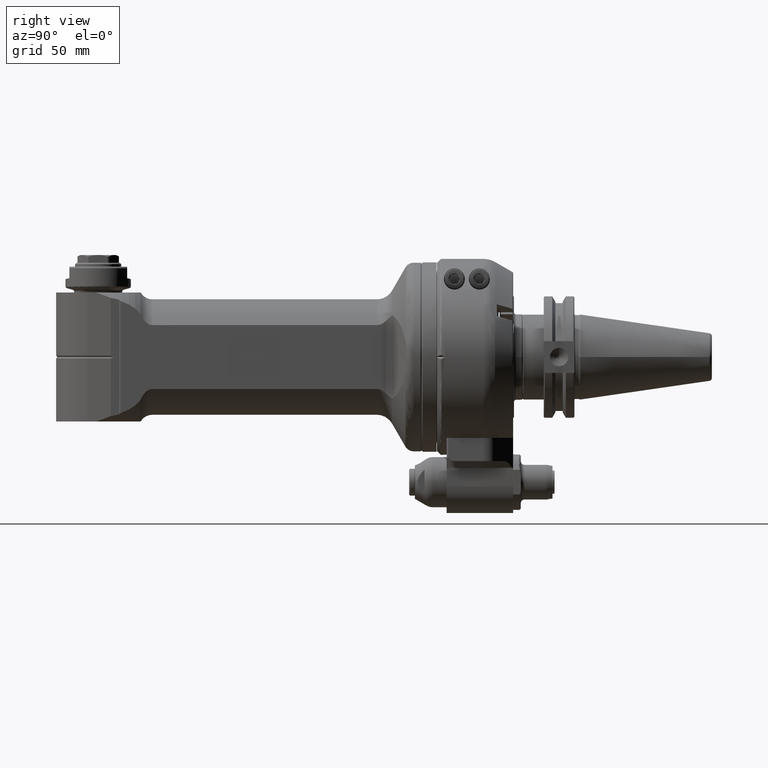
[diagram: clean part render]
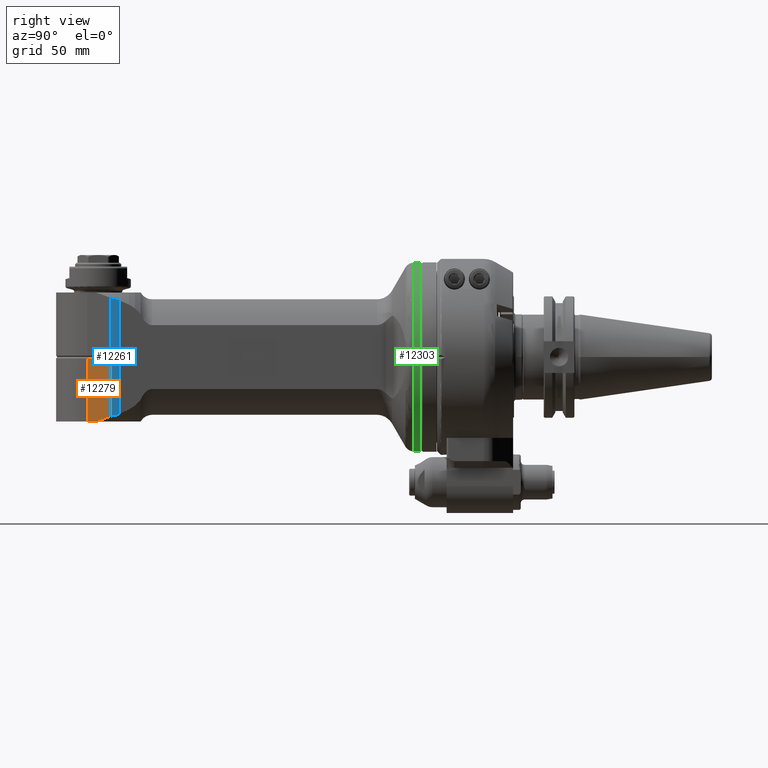
[diagram: same view with three faces highlighted in distinct colors, each labeled with its STEP entity id]
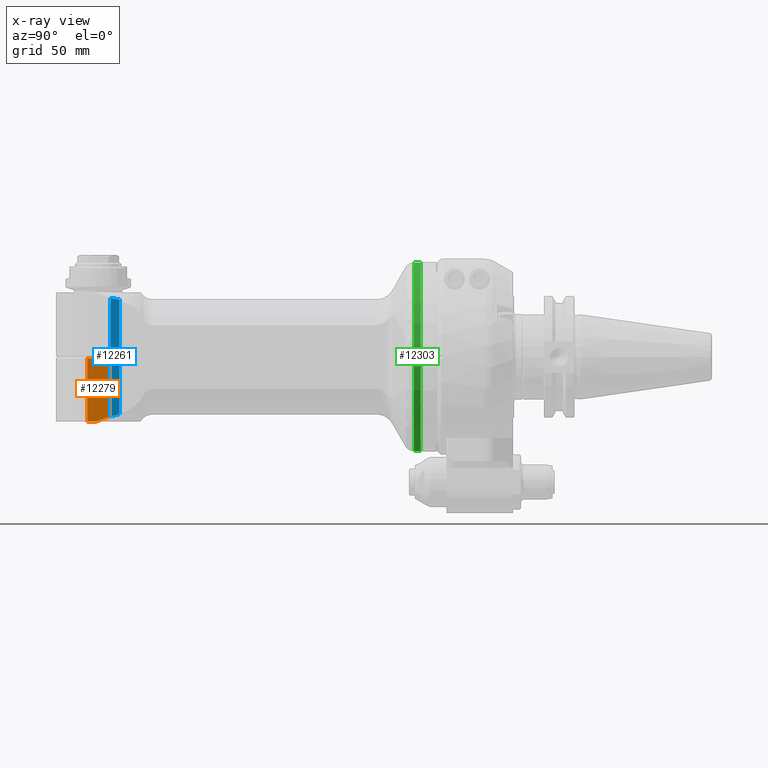
[diagram: x-ray of the same camera — body ghosted, the three highlighted faces saturated]
A machine part, right view with three faces highlighted in distinct colors.
The next image is the same camera in x-ray (body ghosted, the three faces saturated) — at least one of them is partly hidden behind the body in this view.
Their STEP definitions:

[orange] entity #12279 — the highlighted planar face has unit normal (-0.9659, 0.2588, 0).
#41=ELLIPSE('',#13163,277.889209732586,61.2357652891682);
#297=(
BOUNDED_CURVE()
B_SPLINE_CURVE(2,(#18959,#18960,#18961),.UNSPECIFIED.,.F.,.F.)
B_SPLINE_CURVE_WITH_KNOTS((3,3),(0.6083809089203,0.668690733625097),
 .UNSPECIFIED.)
CURVE()
GEOMETRIC_REPRESENTATION_ITEM()
RATIONAL_B_SPLINE_CURVE((1.05761844635318,1.05761844635322,1.05705222463781))
REPRESENTATION_ITEM('')
);
#1595=FACE_OUTER_BOUND('',#2313,.T.);
#2313=EDGE_LOOP('',(#8657,#8658,#8659,#8660,#8661,#8662));
#3105=LINE('',#18819,#4064);
#3116=LINE('',#18941,#4075);
#3121=LINE('',#18964,#4080);
#3122=LINE('',#18966,#4081);
#4064=VECTOR('',#14788,10.);
#4075=VECTOR('',#14855,32.83431457505);
#4080=VECTOR('',#14884,11.9999999999998);
#4081=VECTOR('',#14885,10.);
#5109=VERTEX_POINT('',#18814);
#5110=VERTEX_POINT('',#18818);
#5137=VERTEX_POINT('',#18938);
#5138=VERTEX_POINT('',#18940);
#5141=VERTEX_POINT('',#18958);
#5142=VERTEX_POINT('',#18965);
#6496=EDGE_CURVE('',#5110,#5109,#3105,.T.);
#6536=EDGE_CURVE('',#5137,#5138,#3116,.T.);
#6545=EDGE_CURVE('',#5141,#5109,#297,.T.);
#6547=EDGE_CURVE('',#5141,#5138,#3121,.T.);
#6548=EDGE_CURVE('',#5142,#5137,#3122,.T.);
#6549=EDGE_CURVE('',#5142,#5110,#41,.T.);
#8657=ORIENTED_EDGE('',*,*,#6496,.T.);
#8658=ORIENTED_EDGE('',*,*,#6545,.F.);
#8659=ORIENTED_EDGE('',*,*,#6547,.T.);
#8660=ORIENTED_EDGE('',*,*,#6536,.F.);
#8661=ORIENTED_EDGE('',*,*,#6548,.F.);
#8662=ORIENTED_EDGE('',*,*,#6549,.T.);
#11911=PLANE('',#13162);
#12279=ADVANCED_FACE('',(#1595),#11911,.F.);
#13162=AXIS2_PLACEMENT_3D('',#18963,#14882,#14883);
#13163=AXIS2_PLACEMENT_3D('',#18967,#14886,#14887);
#14788=DIRECTION('',(0.,-1.,0.));
#14855=DIRECTION('',(0.,-1.,0.));
#14882=DIRECTION('center_axis',(-0.258819045102493,0.,-0.965925826289076));
#14883=DIRECTION('ref_axis',(-0.965925826289076,0.,0.258819045102493));
#14884=DIRECTION('',(0.965925824665113,-1.25489491020702E-8,-0.258819051163203));
#14885=DIRECTION('',(0.965925826289076,0.,-0.258819045102493));
#14886=DIRECTION('center_axis',(0.258819045102493,0.,0.965925826289076));
#14887=DIRECTION('ref_axis',(-0.965925826289076,9.58848046552246E-17,0.258819045102493));
#18814=CARTESIAN_POINT('',(173.566227923504,0.652829558118702,24.5000000005895));
#18818=CARTESIAN_POINT('',(173.566227928,30.71080615823,24.5));
#18819=CARTESIAN_POINT('',(173.566227927985,-16.7500000000001,24.5));
#18938=CARTESIAN_POINT('',(185.6940189923,33.5,21.25036817836));
#18940=CARTESIAN_POINT('',(185.6940189923,0.6656854249493,21.25036817836));
#18941=CARTESIAN_POINT('',(185.6940189923,33.5,21.25036817836));
#18958=CARTESIAN_POINT('',(174.102909084954,0.665685506700957,24.3561967500683));
#18959=CARTESIAN_POINT('Ctrl Pts',(174.102909076804,0.665685424951378,24.3561967195807));
#18960=CARTESIAN_POINT('Ctrl Pts',(173.834712162842,0.665685424952208,24.4280598660895));
#18961=CARTESIAN_POINT('Ctrl Pts',(173.566227923593,0.652829559505798,24.5000000011767));
#18963=CARTESIAN_POINT('Origin',(171.7002025242,-33.5,25.));
#18964=CARTESIAN_POINT('',(174.1029090963,0.6656855755367,24.35619679232));
#18965=CARTESIAN_POINT('',(181.097598665241,33.5000040656455,22.4819815240739));
#18966=CARTESIAN_POINT('',(168.646875066792,33.5,25.8181366264403));
#18967=CARTESIAN_POINT('Origin',(405.789439788772,0.,-37.7240220818525));

[blue] entity #12261 — the highlighted planar face has unit normal (1, 0, -0).
#76=B_SPLINE_CURVE_WITH_KNOTS('',3,(#18795,#18796,#18797,#18798,#18799,
#18800,#18801,#18802,#18803,#18804,#18805,#18806,#18807,#18808,#18809,#18810,
#18811,#18812,#18813),.UNSPECIFIED.,.F.,.F.,(4,2,2,2,3,2,2,2,4),(-0.0416901767472168,
-0.0284586640395429,-0.010552472927187,-0.00487147188491391,0.,0.00487147188491388,
0.010552472927187,0.0284586640395429,0.0416901767464042),.UNSPECIFIED.);
#284=(
BOUNDED_CURVE()
B_SPLINE_CURVE(2,(#18780,#18781,#18782),.UNSPECIFIED.,.F.,.F.)
B_SPLINE_CURVE_WITH_KNOTS((3,3),(6.49894976118109,6.80073175906382),
 .UNSPECIFIED.)
CURVE()
GEOMETRIC_REPRESENTATION_ITEM()
RATIONAL_B_SPLINE_CURVE((2.37951455891599,2.36328345982504,2.34257037585291))
REPRESENTATION_ITEM('')
);
#285=(
BOUNDED_CURVE()
B_SPLINE_CURVE(2,(#18788,#18789,#18790),.UNSPECIFIED.,.F.,.F.)
B_SPLINE_CURVE_WITH_KNOTS((3,3),(-0.500735298536844,-0.236493647915969),
 .UNSPECIFIED.)
CURVE()
GEOMETRIC_REPRESENTATION_ITEM()
RATIONAL_B_SPLINE_CURVE((1.00017895558269,1.00020849465388,1.00015702311395))
REPRESENTATION_ITEM('')
);
#286=(
BOUNDED_CURVE()
B_SPLINE_CURVE(2,(#18791,#18792,#18793),.UNSPECIFIED.,.F.,.F.)
B_SPLINE_CURVE_WITH_KNOTS((3,3),(-0.580583432851465,-0.370798839240795),
 .UNSPECIFIED.)
CURVE()
GEOMETRIC_REPRESENTATION_ITEM()
RATIONAL_B_SPLINE_CURVE((1.00024718424026,1.00023293366224,1.00019670857262))
REPRESENTATION_ITEM('')
);
#287=(
BOUNDED_CURVE()
B_SPLINE_CURVE(2,(#18815,#18816,#18817),.UNSPECIFIED.,.F.,.F.)
B_SPLINE_CURVE_WITH_KNOTS((3,3),(-6.80073175751822,-6.49894975968964),
 .UNSPECIFIED.)
CURVE()
GEOMETRIC_REPRESENTATION_ITEM()
RATIONAL_B_SPLINE_CURVE((2.34257037547365,2.36328345944251,2.37951455853089))
REPRESENTATION_ITEM('')
);
#288=(
BOUNDED_CURVE()
B_SPLINE_CURVE(2,(#18821,#18822,#18823),.UNSPECIFIED.,.F.,.F.)
B_SPLINE_CURVE_WITH_KNOTS((3,3),(-1.06246547493024,-0.852680853657764),
 .UNSPECIFIED.)
CURVE()
GEOMETRIC_REPRESENTATION_ITEM()
RATIONAL_B_SPLINE_CURVE((1.00019670943295,1.00023293476591,1.00024718558717))
REPRESENTATION_ITEM('')
);
#289=(
BOUNDED_CURVE()
B_SPLINE_CURVE(2,(#18824,#18825,#18826),.UNSPECIFIED.,.F.,.F.)
B_SPLINE_CURVE_WITH_KNOTS((3,3),(-0.572274959664291,-0.308033309053608),
 .UNSPECIFIED.)
CURVE()
GEOMETRIC_REPRESENTATION_ITEM()
RATIONAL_B_SPLINE_CURVE((1.00015702311421,1.00020849465416,1.00017895558274))
REPRESENTATION_ITEM('')
);
#1577=FACE_OUTER_BOUND('',#2293,.T.);
#2293=EDGE_LOOP('',(#8545,#8546,#8547,#8548,#8549,#8550,#8551,#8552,#8553,
#8554));
#3101=LINE('',#18772,#4060);
#3104=LINE('',#18786,#4063);
#3105=LINE('',#18819,#4064);
#4060=VECTOR('',#14776,10.);
#4063=VECTOR('',#14787,59.29351038904);
#4064=VECTOR('',#14788,10.);
#5101=VERTEX_POINT('',#18767);
#5102=VERTEX_POINT('',#18771);
#5104=VERTEX_POINT('',#18778);
#5105=VERTEX_POINT('',#18784);
#5106=VERTEX_POINT('',#18785);
#5107=VERTEX_POINT('',#18787);
#5108=VERTEX_POINT('',#18794);
#5109=VERTEX_POINT('',#18814);
#5110=VERTEX_POINT('',#18818);
#5111=VERTEX_POINT('',#18820);
#6485=EDGE_CURVE('',#5101,#5102,#3101,.T.);
#6490=EDGE_CURVE('',#5101,#5104,#284,.T.);
#6491=EDGE_CURVE('',#5105,#5106,#3104,.T.);
#6492=EDGE_CURVE('',#5107,#5106,#285,.T.);
#6493=EDGE_CURVE('',#5102,#5107,#286,.T.);
#6494=EDGE_CURVE('',#5104,#5108,#76,.T.);
#6495=EDGE_CURVE('',#5108,#5109,#287,.T.);
#6496=EDGE_CURVE('',#5110,#5109,#3105,.T.);
#6497=EDGE_CURVE('',#5111,#5110,#288,.T.);
#6498=EDGE_CURVE('',#5105,#5111,#289,.T.);
#8545=ORIENTED_EDGE('',*,*,#6491,.T.);
#8546=ORIENTED_EDGE('',*,*,#6492,.F.);
#8547=ORIENTED_EDGE('',*,*,#6493,.F.);
#8548=ORIENTED_EDGE('',*,*,#6485,.F.);
#8549=ORIENTED_EDGE('',*,*,#6490,.T.);
#8550=ORIENTED_EDGE('',*,*,#6494,.T.);
#8551=ORIENTED_EDGE('',*,*,#6495,.T.);
#8552=ORIENTED_EDGE('',*,*,#6496,.F.);
#8553=ORIENTED_EDGE('',*,*,#6497,.F.);
#8554=ORIENTED_EDGE('',*,*,#6498,.F.);
#11906=PLANE('',#13122);
#12261=ADVANCED_FACE('',(#1577),#11906,.T.);
#13122=AXIS2_PLACEMENT_3D('',#18783,#14785,#14786);
#14776=DIRECTION('',(0.,-1.,0.));
#14785=DIRECTION('center_axis',(0.,0.,1.));
#14786=DIRECTION('ref_axis',(1.,0.,0.));
#14787=DIRECTION('',(0.,-1.,0.));
#14788=DIRECTION('',(0.,-1.,0.));
#18767=CARTESIAN_POINT('',(173.566227923504,-0.652829558110537,24.5000000005895));
#18771=CARTESIAN_POINT('',(173.566227928,-30.71080615823,24.5));
#18772=CARTESIAN_POINT('',(173.566227927985,-16.7500000000001,24.5));
#18778=CARTESIAN_POINT('',(172.487093265247,-0.282844264436642,24.4999999836586));
#18780=CARTESIAN_POINT('Ctrl Pts',(173.56622792343,-0.652829558326773,24.5));
#18781=CARTESIAN_POINT('Ctrl Pts',(173.034843671283,-0.491704484366063,
24.5));
#18782=CARTESIAN_POINT('Ctrl Pts',(172.487093256971,-0.282844286129377,
24.5));
#18783=CARTESIAN_POINT('Origin',(170.75,-1.304743996387E-13,24.5));
#18784=CARTESIAN_POINT('',(168.99,29.64675519452,24.5));
#18785=CARTESIAN_POINT('',(168.99,-29.64675519452,24.5));
#18786=CARTESIAN_POINT('',(168.99,29.64675519452,24.5));
#18787=CARTESIAN_POINT('',(171.5299807711,-30.3438626414,24.5));
#18788=CARTESIAN_POINT('Ctrl Pts',(171.5299807711,-30.3438626413999,24.5));
#18789=CARTESIAN_POINT('Ctrl Pts',(170.245232748648,-29.9928795317612,24.5));
#18790=CARTESIAN_POINT('Ctrl Pts',(168.989999999989,-29.6467551945185,24.5));
#18791=CARTESIAN_POINT('Ctrl Pts',(173.566227928001,-30.7108061582246,24.5));
#18792=CARTESIAN_POINT('Ctrl Pts',(172.541985344188,-30.5266637170163,24.5));
#18793=CARTESIAN_POINT('Ctrl Pts',(171.529980771122,-30.3438626413925,24.5));
#18794=CARTESIAN_POINT('',(172.487093265245,0.282844264439876,24.4999999836585));
#18795=CARTESIAN_POINT('Ctrl Pts',(172.487093250278,-0.282844283573504,
24.5));
#18796=CARTESIAN_POINT('Ctrl Pts',(172.44475154675,-0.26669934214214,24.5));
#18797=CARTESIAN_POINT('Ctrl Pts',(172.403986299848,-0.248293179028749,
24.5));
#18798=CARTESIAN_POINT('Ctrl Pts',(172.313698363238,-0.197098065934553,
24.5));
#18799=CARTESIAN_POINT('Ctrl Pts',(172.256346345474,-0.154192903764515,
24.5));
#18800=CARTESIAN_POINT('Ctrl Pts',(172.212129542911,-0.0891805692822678,
24.5));
#18801=CARTESIAN_POINT('Ctrl Pts',(172.201747172421,-0.0689670404343553,
24.5));
#18802=CARTESIAN_POINT('Ctrl Pts',(172.191025697047,-0.0354659323595188,
24.5));
#18803=CARTESIAN_POINT('Ctrl Pts',(172.187864108051,-0.0162382396163371,
24.5));
#18804=CARTESIAN_POINT('Ctrl Pts',(172.187864108051,4.263256414561E-14,
24.5));
#18805=CARTESIAN_POINT('Ctrl Pts',(172.187864108051,0.0162382396164223,
24.5));
#18806=CARTESIAN_POINT('Ctrl Pts',(172.191025697047,0.035465932359604,24.5));
#18807=CARTESIAN_POINT('Ctrl Pts',(172.201747172421,0.0689670404344405,
24.5));
#18808=CARTESIAN_POINT('Ctrl Pts',(172.212129542911,0.0891805692823528,
24.5));
#18809=CARTESIAN_POINT('Ctrl Pts',(172.256346345474,0.154192903764601,24.5));
#18810=CARTESIAN_POINT('Ctrl Pts',(172.313698363238,0.197098065934638,24.5));
#18811=CARTESIAN_POINT('Ctrl Pts',(172.403986299846,0.248293179027498,24.5));
#18812=CARTESIAN_POINT('Ctrl Pts',(172.444751546745,0.266699342139947,24.5));
#18813=CARTESIAN_POINT('Ctrl Pts',(172.48709325027,0.282844283570612,24.5));
#18814=CARTESIAN_POINT('',(173.566227923504,0.652829558118702,24.5000000005895));
#18815=CARTESIAN_POINT('Ctrl Pts',(172.487093256967,0.282844286136187,24.5));
#18816=CARTESIAN_POINT('Ctrl Pts',(173.034843671281,0.491704484373718,24.5));
#18817=CARTESIAN_POINT('Ctrl Pts',(173.56622792343,0.652829558334958,24.5));
#18818=CARTESIAN_POINT('',(173.566227928,30.71080615823,24.5));
#18819=CARTESIAN_POINT('',(173.566227927985,-16.7500000000001,24.5));
#18820=CARTESIAN_POINT('',(171.5299807711,30.3438626414,24.5));
#18821=CARTESIAN_POINT('Ctrl Pts',(171.529980771049,30.3438626413885,24.5));
#18822=CARTESIAN_POINT('Ctrl Pts',(172.54198534415,30.5266637170187,24.5));
#18823=CARTESIAN_POINT('Ctrl Pts',(173.566227927999,30.7108061582336,24.5));
#18824=CARTESIAN_POINT('Ctrl Pts',(168.989999999989,29.6467551945184,24.5));
#18825=CARTESIAN_POINT('Ctrl Pts',(170.245232748648,29.9928795317613,24.5));
#18826=CARTESIAN_POINT('Ctrl Pts',(171.5299807711,30.3438626413999,24.5));

[green] entity #12303 — the highlighted cylindrical surface (bore or boss wall) has radius 49 mm, axis along (-0, 1, 0).
#527=CYLINDRICAL_SURFACE('',#13209,49.);
#958=CIRCLE('',#13207,49.);
#960=CIRCLE('',#13210,49.);
#961=CIRCLE('',#13211,49.);
#1619=FACE_OUTER_BOUND('',#2342,.T.);
#2342=EDGE_LOOP('',(#8764,#8765,#8766,#8767,#8768));
#3129=LINE('',#19093,#4088);
#4088=VECTOR('',#14990,49.);
#5162=VERTEX_POINT('',#19075);
#5163=VERTEX_POINT('',#19089);
#5164=VERTEX_POINT('',#19090);
#6584=EDGE_CURVE('',#5162,#5162,#958,.T.);
#6587=EDGE_CURVE('',#5163,#5164,#960,.T.);
#6588=EDGE_CURVE('',#5164,#5163,#961,.T.);
#6589=EDGE_CURVE('',#5164,#5162,#3129,.T.);
#8764=ORIENTED_EDGE('',*,*,#6587,.F.);
#8765=ORIENTED_EDGE('',*,*,#6588,.F.);
#8766=ORIENTED_EDGE('',*,*,#6589,.T.);
#8767=ORIENTED_EDGE('',*,*,#6584,.F.);
#8768=ORIENTED_EDGE('',*,*,#6589,.F.);
#12303=ADVANCED_FACE('',(#1619),#527,.T.);
#13207=AXIS2_PLACEMENT_3D('',#19076,#14980,#14981);
#13209=AXIS2_PLACEMENT_3D('',#19088,#14984,#14985);
#13210=AXIS2_PLACEMENT_3D('',#19091,#14986,#14987);
#13211=AXIS2_PLACEMENT_3D('',#19092,#14988,#14989);
#14980=DIRECTION('center_axis',(1.,0.,0.));
#14981=DIRECTION('ref_axis',(0.,-1.,0.));
#14984=DIRECTION('center_axis',(-1.,0.,0.));
#14985=DIRECTION('ref_axis',(0.,1.,0.));
#14986=DIRECTION('center_axis',(-1.,0.,0.));
#14987=DIRECTION('ref_axis',(0.,1.,0.));
#14988=DIRECTION('center_axis',(-1.,0.,0.));
#14989=DIRECTION('ref_axis',(0.,1.,0.));
#14990=DIRECTION('',(1.,0.,0.));
#19075=CARTESIAN_POINT('',(16.11324869871,-49.,6.00076931582203E-15));
#19076=CARTESIAN_POINT('Origin',(16.11324869871,0.,0.));
#19088=CARTESIAN_POINT('Origin',(58.7038755,0.,0.));
#19089=CARTESIAN_POINT('',(12.5,49.,0.));
#19090=CARTESIAN_POINT('',(12.5,-49.,6.00076931582203E-15));
#19091=CARTESIAN_POINT('Origin',(12.5,0.,0.));
#19092=CARTESIAN_POINT('Origin',(12.5,0.,0.));
#19093=CARTESIAN_POINT('',(58.7038755,-49.,6.00076931582203E-15));